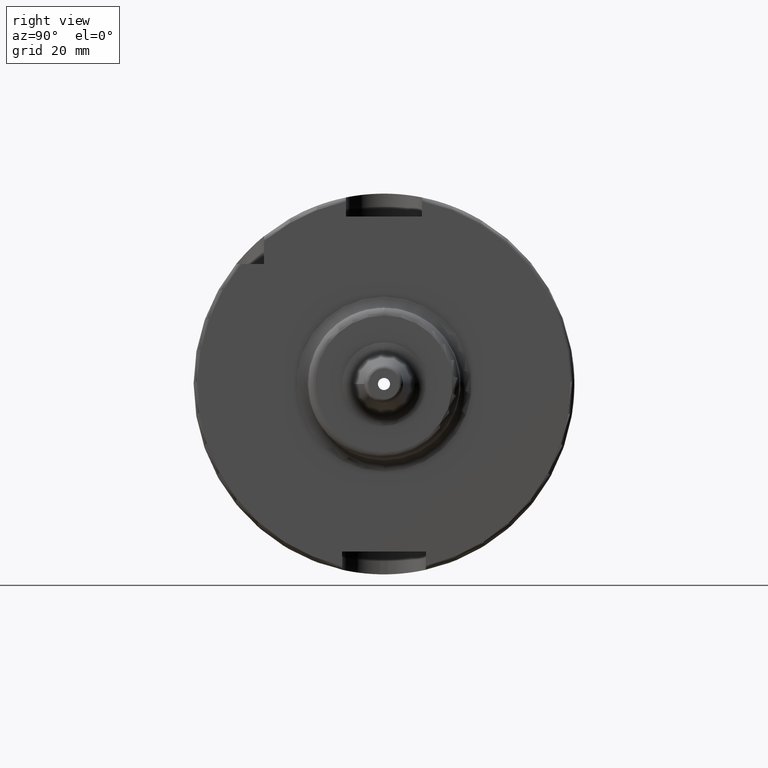
[diagram: clean part render]
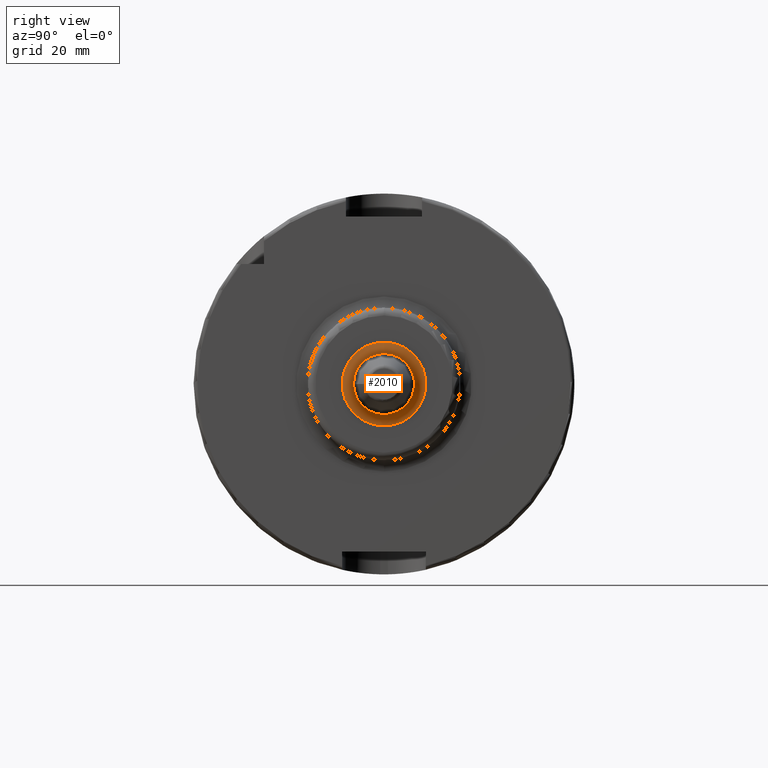
[diagram: same view with one face highlighted and labeled with its STEP entity id]
A machine part, right view. The second image highlights one B-rep face of the part: STEP entity #2010.
In plain terms, the highlighted toroidal blend (fillet) surface has major radius 10.9999 mm and minor (blend) radius 3 mm.
Its self-contained STEP definition (entity closure, byte-faithful):
#420=FACE_OUTER_BOUND('',#542,.T.);
#542=EDGE_LOOP('',(#1359,#1360,#1361,#1362,#1363));
#670=CIRCLE('',#2153,8.00918945358461);
#671=CIRCLE('',#2154,8.00918945358461);
#677=CIRCLE('',#2163,10.999941454784);
#680=CIRCLE('',#2168,3.);
#804=VERTEX_POINT('',#3049);
#805=VERTEX_POINT('',#3051);
#810=VERTEX_POINT('',#3066);
#1016=EDGE_CURVE('',#805,#804,#670,.T.);
#1017=EDGE_CURVE('',#804,#805,#671,.T.);
#1023=EDGE_CURVE('',#810,#810,#677,.T.);
#1027=EDGE_CURVE('',#810,#805,#680,.T.);
#1359=ORIENTED_EDGE('',*,*,#1023,.T.);
#1360=ORIENTED_EDGE('',*,*,#1027,.T.);
#1361=ORIENTED_EDGE('',*,*,#1016,.T.);
#1362=ORIENTED_EDGE('',*,*,#1017,.T.);
#1363=ORIENTED_EDGE('',*,*,#1027,.F.);
#1979=TOROIDAL_SURFACE('',#2167,10.999941454784,3.);
#2010=ADVANCED_FACE('',(#420),#1979,.F.);
#2153=AXIS2_PLACEMENT_3D('',#3052,#2423,#2424);
#2154=AXIS2_PLACEMENT_3D('',#3053,#2425,#2426);
#2163=AXIS2_PLACEMENT_3D('',#3067,#2443,#2444);
#2167=AXIS2_PLACEMENT_3D('',#3074,#2452,#2453);
#2168=AXIS2_PLACEMENT_3D('',#3075,#2454,#2455);
#2423=DIRECTION('center_axis',(-1.,0.,0.));
#2424=DIRECTION('ref_axis',(0.,-1.,3.06161699786838E-17));
#2425=DIRECTION('center_axis',(-1.,0.,0.));
#2426=DIRECTION('ref_axis',(0.,-1.,3.06161699786838E-17));
#2443=DIRECTION('center_axis',(1.,0.,0.));
#2444=DIRECTION('ref_axis',(0.,-1.,1.83697019872103E-16));
#2452=DIRECTION('center_axis',(1.,0.,0.));
#2453=DIRECTION('ref_axis',(0.,0.,-1.));
#2454=DIRECTION('center_axis',(0.,-1.,-1.22464679914735E-16));
#2455=DIRECTION('ref_axis',(0.,-1.22464679914735E-16,1.));
#3049=CARTESIAN_POINT('',(41.7646227128165,-8.00918945358461,-9.80842822809713E-16));
#3051=CARTESIAN_POINT('',(41.7646227128165,-9.80842822809713E-16,8.00918945358461));
#3052=CARTESIAN_POINT('Origin',(41.7646227128165,0.,-1.22605352851214E-15));
#3053=CARTESIAN_POINT('Origin',(41.7646227128165,0.,-1.22605352851214E-15));
#3066=CARTESIAN_POINT('',(39.,-1.34710430934095E-15,10.999941454784));
#3067=CARTESIAN_POINT('Origin',(39.,0.,0.));
#3074=CARTESIAN_POINT('Origin',(42.,0.,0.));
#3075=CARTESIAN_POINT('Origin',(42.,-1.34710430934095E-15,10.999941454784));